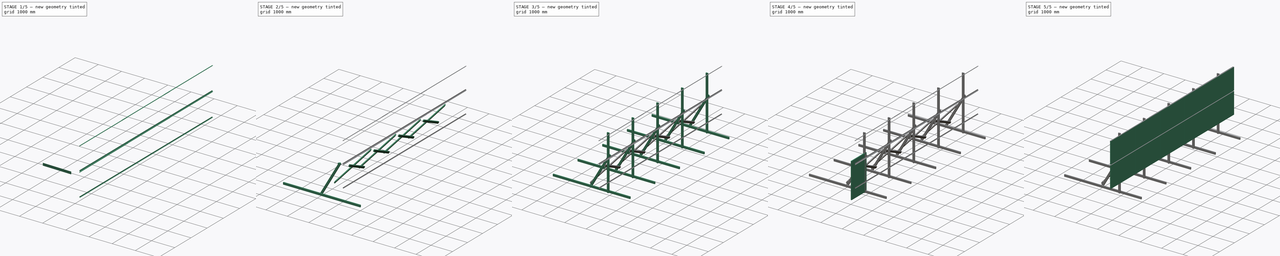
[diagram: build sequence overview — one tinted view per stage of 5, left to right]
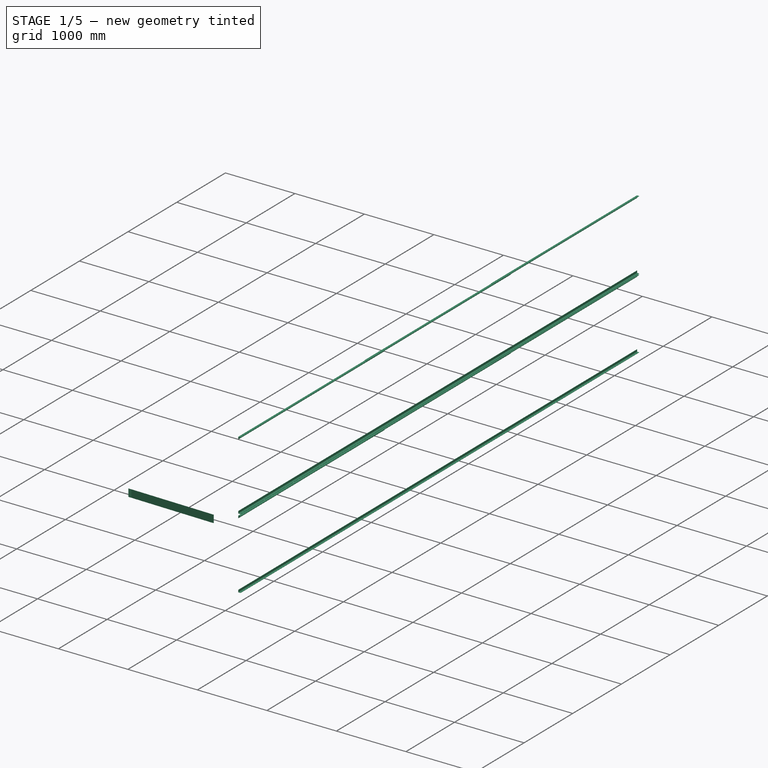
[diagram: stage 1 of 5 — iso view after this stage's code; geometry added in this stage tinted green]
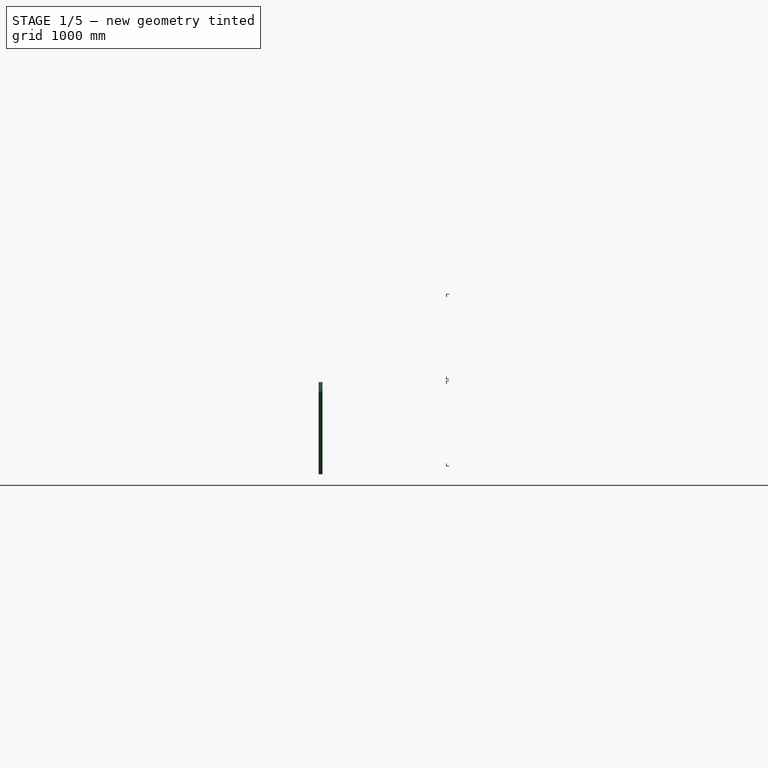
[diagram: stage 1 of 5 — front view after this stage's code; geometry added in this stage tinted green]
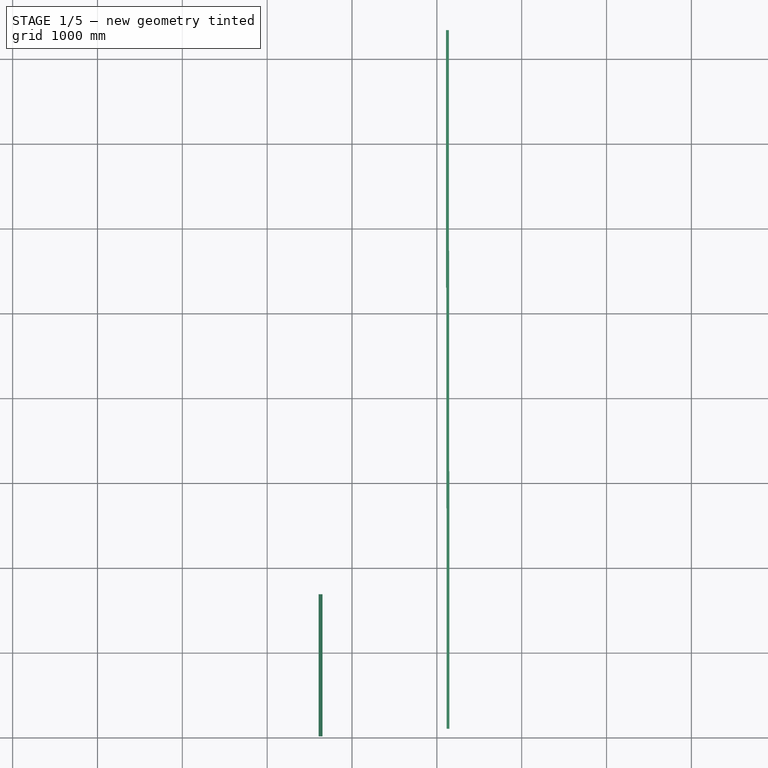
[diagram: stage 1 of 5 — top view after this stage's code; geometry added in this stage tinted green]
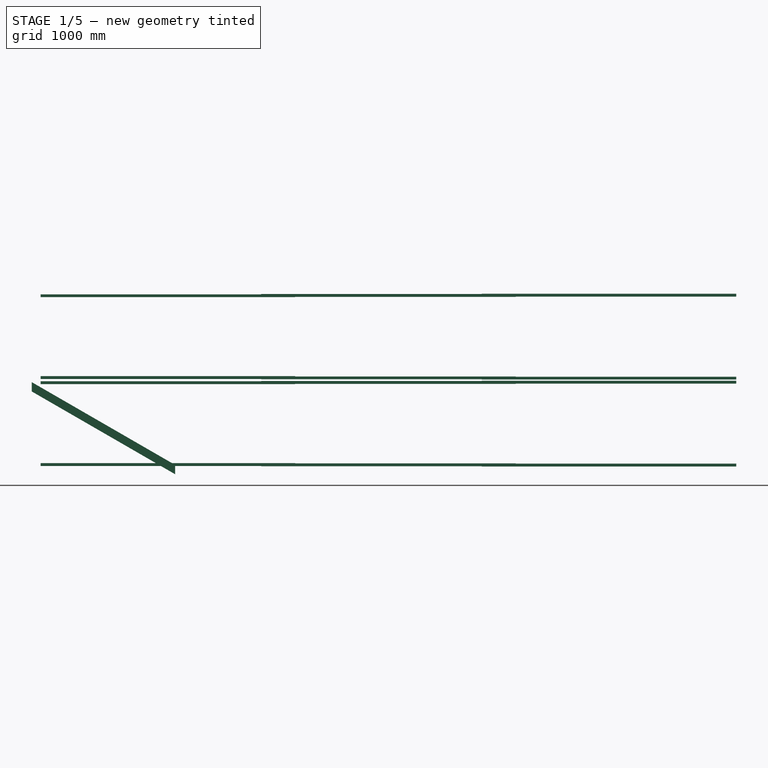
[diagram: stage 1 of 5 — right view after this stage's code; geometry added in this stage tinted green]
FCSTD DOCUMENT  (FreeCAD 0.16R)
Label: solar_mount7
License: All rights reserved
LicenseURL: http://en.wikipedia.org/wiki/All_rights_reserved
objects: Sketcher::SketchObject×10, PartDesign::Pad×9, Part::FeaturePython×7, Part::Cut×4, Part::Cylinder×4, Part::Fuse×2, Part::Compound×2, Spreadsheet::Sheet×1
note: 47 computed .brp shape members not serialized (recipe doc carries the construction recipe); baked Part::Feature solids carry a one-line shape summary decoded from their .brp

FEATURE [Sketcher::SketchObject] Sketch014
  Placement = pos=(-1488.52,4.22287e-05,258.48) rot=(0.57735,0.57735,0.57735;2.0944rad)
  expr: Constraints[20] = Spreadsheet.panel_delning + Spreadsheet.timmer_tjock
  expr: Constraints[18] = Spreadsheet.timmer_bredd
  sketch-geometry (8):
    g0: LineSegment StartX=0 StartY=0 StartZ=0 EndX=0 EndY=109.697 EndZ=0
    g1: LineSegment StartX=0 StartY=109.697 StartZ=0 EndX=1690 EndY=1085.42 EndZ=0
    g2: LineSegment StartX=1690 StartY=1085.42 StartZ=0 EndX=1690 EndY=975.722 EndZ=0
    g3: LineSegment StartX=1690 StartY=975.722 StartZ=0 EndX=0 EndY=0 EndZ=0
    g4: LineSegment [constr] StartX=1690 StartY=1085.42 StartZ=0 EndX=1737.5 EndY=1003.15 EndZ=0
    g5: LineSegment [constr] StartX=1737.5 StartY=1003.15 StartZ=0 EndX=1690 EndY=975.722 EndZ=0
    g6: LineSegment [constr] StartX=0 StartY=0 StartZ=0 EndX=-47.5 EndY=82.2724 EndZ=0
    g7: LineSegment [constr] StartX=-47.5 StartY=82.2724 StartZ=0 EndX=0 EndY=109.697 EndZ=0
  constraints (21):
    c: Coincident(g-1,g0)
    c: PointOnObject(g0,g-2)
    c: Coincident(g0,g1)
    c: Coincident(g1,g2)
    c: Vertical(g2)
    c: Coincident(g2,g3)
    c: Coincident(g3,g0)
    c: Parallel(g3,g1)
    c: Coincident(g1,g4)
    c: Coincident(g4,g5)
    c: Coincident(g5,g2)
    c: Coincident(g-1,g6)
    c: Coincident(g6,g7)
    c: Coincident(g7,g0)
    c: Parallel(g7,g1)
    c: Parallel(g5,g3)
    c: Perpendicular(g5,g4)
    c: Perpendicular(g7,g6)
    c: Distance(g-1,g6) = 95
    c: Angle(g-1,g3) = 0.523599
    c: DistanceX(g-1,g2) = 1690
FEATURE [PartDesign::Pad] Pad012
  Length = 45
  Length2 = 100
  Placement = pos=(-1488.52,4.22287e-05,258.48) rot=(0.57735,0.57735,0.57735;2.0944rad)
  Reversed = true
  Sketch = -> Sketch014
  Type = 0
  expr: Length = Spreadsheet.timmer_tjock
FEATURE [Part::FeaturePython] Clone  label="Clone of Pad012"  # Draft clone (typed FeaturePython)
  Objects = -> [Pad012]
  Placement = pos=(-1393.52,4.22287e-05,1468.16) rot=(0.57735,0.57735,-0.57735;4.18879rad)
  Scale = (1,1,1)
FEATURE [Sketcher::SketchObject] Sketch015
  Placement = pos=(117.5,105,483) rot=(1,0,0;1.5708rad)
  sketch-geometry (6):
    g0: LineSegment StartX=0 StartY=0 StartZ=0 EndX=30 EndY=0 EndZ=0
    g1: LineSegment StartX=30 StartY=0 StartZ=0 EndX=30 EndY=-3 EndZ=0
    g2: LineSegment StartX=30 StartY=-3 StartZ=0 EndX=-3 EndY=-3 EndZ=0
    g3: LineSegment StartX=-3 StartY=-3 StartZ=0 EndX=-3 EndY=30 EndZ=0
    g4: LineSegment StartX=-3 StartY=30 StartZ=0 EndX=0 EndY=30 EndZ=0
    g5: LineSegment StartX=0 StartY=30 StartZ=0 EndX=0 EndY=0 EndZ=0
  constraints (18):
    c: Coincident(g0,g-1)
    c: Horizontal(g0)
    c: Coincident(g0,g1)
    c: Vertical(g1)
    c: Coincident(g1,g2)
    c: Horizontal(g2)
    c: Coincident(g2,g3)
    c: Vertical(g3)
    c: Coincident(g3,g4)
    c: PointOnObject(g4,g-2)
    c: Horizontal(g4)
    c: Coincident(g4,g5)
    c: Coincident(g5,g-1)
    c: Equal(g4,g1)
    c: Equal(g2,g3)
    c: Equal(g5,g0)
    c: DistanceY(g1,g0) = 3
    c: DistanceY(g-1,g4) = 30
FEATURE [PartDesign::Pad] Pad013  label="30x30 L-profil"
  Length = 3000
  Length2 = 100
  Placement = pos=(117.5,105,483) rot=(1,0,0;1.5708rad)
  Reversed = true
  Sketch = -> Sketch015
  Type = 0
FEATURE [Part::FeaturePython] Clone001  label="Clone of 30x30 L-profil"  # Draft clone (typed FeaturePython)
  Objects = -> [Pad013]
  Placement = pos=(117.5,105,1475) rot=(0.57735,0.57735,-0.57735;2.0944rad)
  Scale = (1,1,1)
FEATURE [Part::FeaturePython] Array004  # Draft array (typed FeaturePython)
  Angle = 360
  ArrayType = 0
  Axis = (0,0,1)
  Base = -> Pad013
  Center = (0,0,0)
  Fuse = false
  IntervalAxis = (0,0,0)
  IntervalX = (1,0,0)
  IntervalY = (-3,2600,-3)
  IntervalZ = (0,0,1025)
  NumberPolar = 1
  NumberX = 1
  NumberY = 3
  NumberZ = 2
FEATURE [Part::FeaturePython] Array005  # Draft array (typed FeaturePython)
  Angle = 360
  ArrayType = 0
  Axis = (0,0,1)
  Base = -> Clone001
  Center = (0,0,0)
  Fuse = false
  IntervalAxis = (0,0,0)
  IntervalX = (1,0,0)
  IntervalY = (-3,2600,3)
  IntervalZ = (0,0,1025)
  NumberPolar = 1
  NumberX = 1
  NumberY = 3
  NumberZ = 2
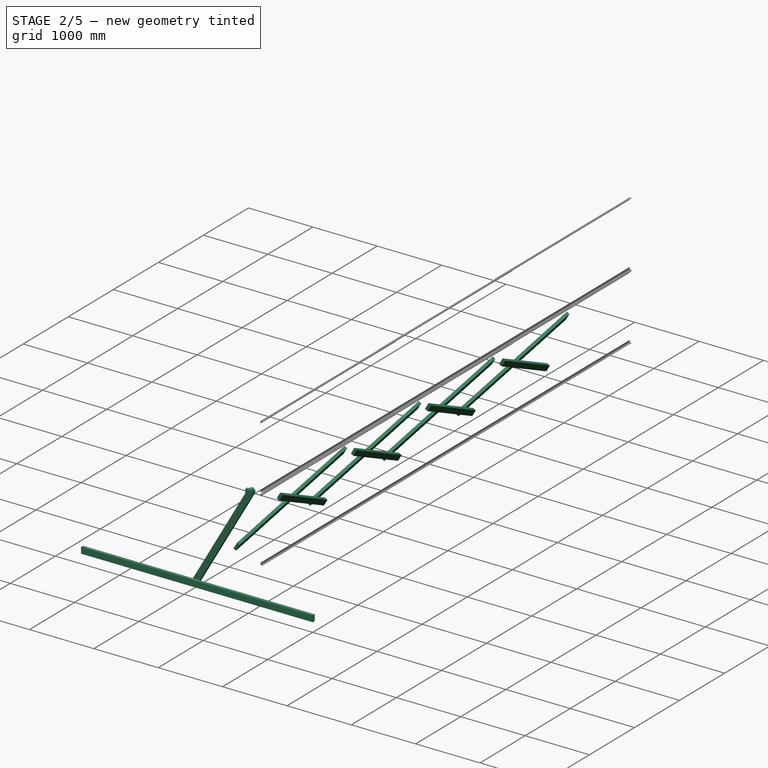
[diagram: stage 2 of 5 — iso view after this stage's code; geometry added in this stage tinted green]
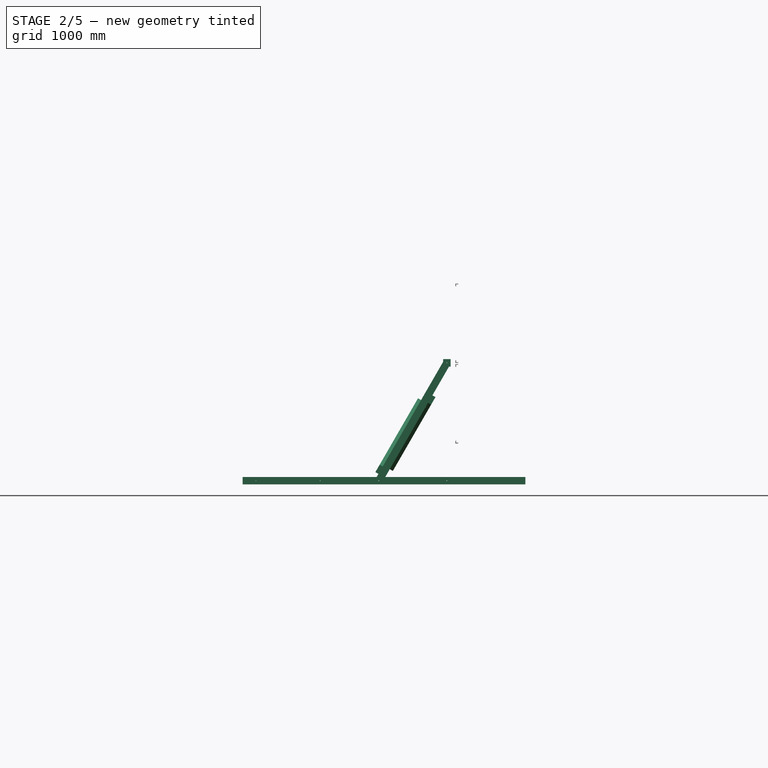
[diagram: stage 2 of 5 — front view after this stage's code; geometry added in this stage tinted green]
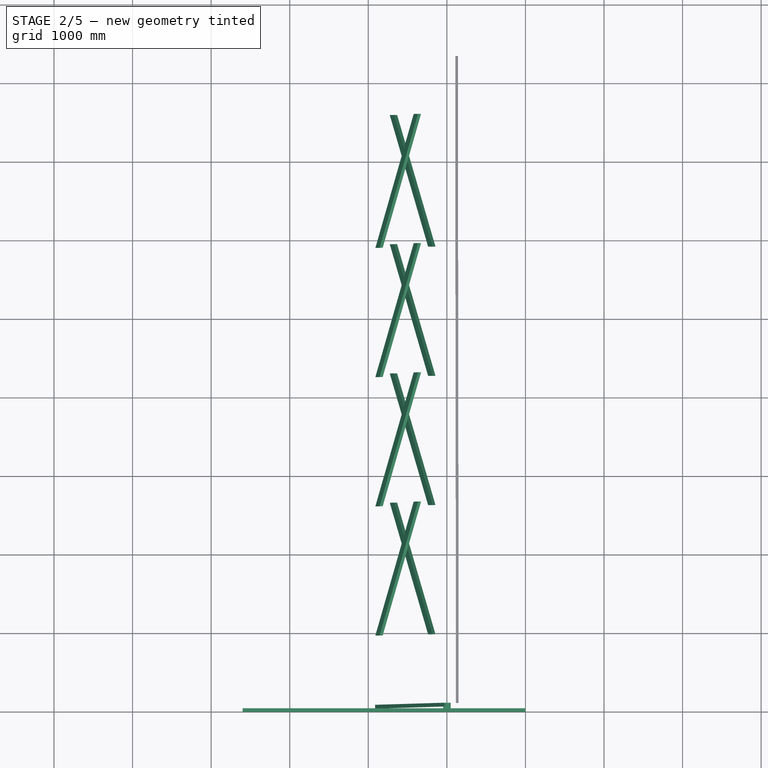
[diagram: stage 2 of 5 — top view after this stage's code; geometry added in this stage tinted green]
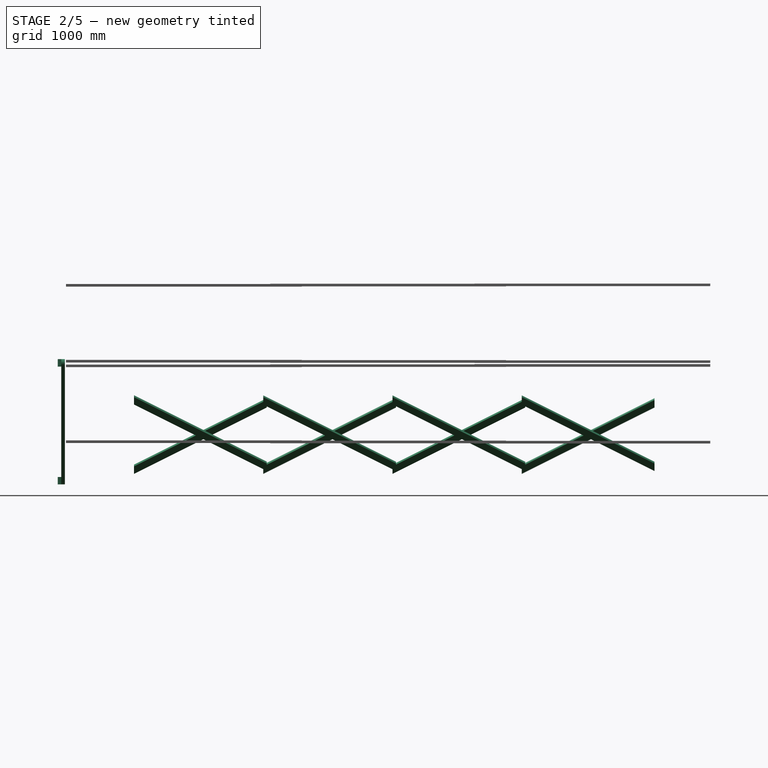
[diagram: stage 2 of 5 — right view after this stage's code; geometry added in this stage tinted green]
FEATURE [Sketcher::SketchObject] Sketch011
  Placement = pos=(0,0,0) rot=(1,0,0;1.5708rad)
  expr: Constraints[43] = Spreadsheet.timmer_bredd
  expr: Constraints[23] = Spreadsheet.vipp_center + 1000mm
  expr: Constraints[9] = Spreadsheet.vipp_center
  sketch-geometry (21):
    g0: LineSegment [constr] StartX=0 StartY=0 StartZ=0 EndX=-866.025 EndY=0 EndZ=0
    g1: GeomPoint [constr] X=0 Y=1500 Z=0
    g2: LineSegment [constr] StartX=0 StartY=0 StartZ=0 EndX=-1060.66 EndY=1060.66 EndZ=0
    g3: LineSegment [constr] StartX=-1060.66 StartY=1060.66 StartZ=0 EndX=-2429.97 EndY=0 EndZ=0
    g4: LineSegment [constr] StartX=0 StartY=0 StartZ=0 EndX=0 EndY=1500 EndZ=0
    g5: LineSegment [constr] StartX=0 StartY=1500 StartZ=0 EndX=0 EndY=2500 EndZ=0
    g6: LineSegment [constr] StartX=0 StartY=1500 StartZ=0 EndX=-866.025 EndY=0 EndZ=0
    g7: LineSegment [constr] StartX=-866.025 StartY=0 StartZ=0 EndX=-2429.97 EndY=0 EndZ=0
    g8: LineSegment [constr] StartX=0 StartY=0 StartZ=0 EndX=-574.025 EndY=1385.82 EndZ=0
    g9: LineSegment [constr] StartX=-574.025 StartY=1385.82 StartZ=0 EndX=-1613.02 EndY=0 EndZ=0
    g10: LineSegment [constr] StartX=-2429.97 StartY=0 StartZ=0 EndX=-2600 EndY=0 EndZ=0
    g11: LineSegment StartX=1000 StartY=0 StartZ=0 EndX=1000 EndY=47.5 EndZ=0
    g12: LineSegment StartX=1000 StartY=47.5 StartZ=0 EndX=-2600 EndY=47.5 EndZ=0
    g13: LineSegment StartX=-2600 StartY=47.5 StartZ=0 EndX=-2600 EndY=0 EndZ=0
    g14: LineSegment StartX=-2600 StartY=0 StartZ=0 EndX=-2600 EndY=-47.5 EndZ=0
    g15: LineSegment StartX=-2600 StartY=-47.5 StartZ=0 EndX=1000 EndY=-47.5 EndZ=0
    g16: LineSegment StartX=1000 StartY=-47.5 StartZ=0 EndX=1000 EndY=0 EndZ=0
    g17: Circle CenterX=0 CenterY=0 CenterZ=0 NormalX=0 NormalY=0 NormalZ=1 Radius=4
    g18: Circle CenterX=-866.025 CenterY=0 CenterZ=0 NormalX=0 NormalY=0 NormalZ=1 Radius=4
    g19: Circle CenterX=-1613.02 CenterY=0 CenterZ=0 NormalX=0 NormalY=0 NormalZ=1 Radius=4
    g20: Circle CenterX=-2429.97 CenterY=0 CenterZ=0 NormalX=0 NormalY=0 NormalZ=1 Radius=4
  constraints (54):
    c: Coincident(g-1,g0)
    c: Horizontal(g0)
    c: Coincident(g-1,g2)
    c: Coincident(g-1,g4)
    c: Coincident(g4,g1)
    c: Vertical(g4)
    c: Coincident(g4,g5)
    c: Vertical(g5)
    c: Equal(g4,g2)
    c: DistanceY(g4,g4) = 1500
    c: Angle(g4,g2) = 0.785398
    c: Coincident(g6,g1)
    c: Coincident(g6,g0)
    c: Coincident(g6,g7)
    c: Coincident(g7,g3)
    c: Horizontal(g7)
    c: Equal(g6,g3)
    c: Coincident(g-1,g8)
    c: Coincident(g8,g9)
    c: PointOnObject(g9,g7)
    c: Equal(g9,g6)
    c: Equal(g8,g4)
    c: Angle(g4,g8) = 0.392699
    c: DistanceY(g-1,g5) = 2500
    c: Coincident(g3,g10)
    c: Horizontal(g10)
    c: Angle(g6,g4) = 0.523599
    c: DistanceX(g10,g-1) = 2600
    c: Coincident(g2,g3)
    c: PointOnObject(g11,g-1)
    c: Vertical(g11)
    c: Coincident(g11,g12)
    c: Horizontal(g12)
    c: Coincident(g12,g13)
    c: Coincident(g13,g10)
    c: Coincident(g13,g14)
    c: Vertical(g14)
    c: Coincident(g14,g15)
    c: Horizontal(g15)
    c: Coincident(g15,g16)
    c: Coincident(g16,g11)
    c: Vertical(g16)
    c: Equal(g16,g11)
    c: DistanceY(g15,g11) = 95
    c: Vertical(g13)
    c: DistanceX(g-1,g15) = 1000
    c: Coincident(g17,g-1)
    c: Coincident(g18,g0)
    c: Coincident(g19,g9)
    c: Coincident(g20,g3)
    c: Equal(g20,g19)
    c: Equal(g19,g18)
    c: Equal(g18,g17)
    c: Radius(g17) = 4
FEATURE [PartDesign::Pad] Pad009  label="Bas001"
  Length = 45
  Length2 = 100
  Placement = pos=(0,0,0) rot=(1,0,0;1.5708rad)
  Reversed = true
  Sketch = -> Sketch011
  Type = 0
FEATURE [Sketcher::SketchObject] Sketch012
  Placement = pos=(0,0,0) rot=(1,0,0;1.5708rad)
  expr: Constraints[28] = Spreadsheet.timmer_bredd
  expr: Constraints[29] = Spreadsheet.timmer_bredd
  expr: Constraints[4] = Spreadsheet.vipp_center
  sketch-geometry (13):
    g0: LineSegment [constr] StartX=0 StartY=0 StartZ=0 EndX=-866.025 EndY=0 EndZ=0
    g1: GeomPoint [constr] X=0 Y=1500 Z=0
    g2: LineSegment [constr] StartX=0 StartY=0 StartZ=0 EndX=0 EndY=1500 EndZ=0
    g3: LineSegment [constr] StartX=0 StartY=1500 StartZ=0 EndX=-866.025 EndY=0 EndZ=0
    g4: Circle CenterX=0 CenterY=1500 CenterZ=0 NormalX=0 NormalY=0 NormalZ=1 Radius=4
    g5: LineSegment StartX=47.5 StartY=1547.5 StartZ=0 EndX=0 EndY=1547.5 EndZ=0
    g6: LineSegment StartX=0 StartY=1547.5 StartZ=0 EndX=-47.5 EndY=1547.5 EndZ=0
    g7: LineSegment StartX=-47.5 StartY=1547.5 StartZ=0 EndX=-47.5 EndY=1452.5 EndZ=0
    g8: LineSegment StartX=-47.5 StartY=1452.5 StartZ=0 EndX=47.5 EndY=1452.5 EndZ=0
    g9: LineSegment StartX=47.5 StartY=1452.5 StartZ=0 EndX=47.5 EndY=1500 EndZ=0
    g10: LineSegment StartX=47.5 StartY=1500 StartZ=0 EndX=47.5 EndY=1547.5 EndZ=0
    g11: LineSegment [constr] StartX=0 StartY=1500 StartZ=0 EndX=47.5 EndY=1500 EndZ=0
    g12: LineSegment [constr] StartX=0 StartY=1500 StartZ=0 EndX=0 EndY=1547.5 EndZ=0
  constraints (33):
    c: Coincident(g-1,g0)
    c: Horizontal(g0)
    c: Coincident(g-1,g2)
    c: Coincident(g2,g1)
    c: DistanceY(g2,g2) = 1500
    c: Coincident(g3,g1)
    c: Coincident(g3,g0)
    c: Angle(g3,g2) = 0.523599
    c: Vertical(g2)
    c: Coincident(g4,g1)
    c: Radius(g4) = 4
    c: Horizontal(g5)
    c: Coincident(g5,g6)
    c: Horizontal(g6)
    c: Coincident(g6,g7)
    c: Vertical(g7)
    c: Coincident(g7,g8)
    c: Horizontal(g8)
    c: Coincident(g8,g9)
    c: Vertical(g9)
    c: Coincident(g9,g10)
    c: Coincident(g10,g5)
    c: Vertical(g10)
    c: Equal(g5,g6)
    c: Equal(g10,g9)
    c: Coincident(g11,g1)
    c: Coincident(g11,g9)
    c: Horizontal(g11)
    c: DistanceY(g8,g5) = 95
    c: DistanceX(g6,g5) = 95
    c: Coincident(g12,g1)
    c: Coincident(g12,g5)
    c: Vertical(g12)
FEATURE [PartDesign::Pad] Pad010  label="Bricka"
  Length = 45
  Length2 = 100
  Placement = pos=(0,0,0) rot=(1,0,0;1.5708rad)
  Reversed = true
  Sketch = -> Sketch012
  Type = 0
FEATURE [Sketcher::SketchObject] Sketch013
  Placement = pos=(0,90,0) rot=(1,0,0;1.5708rad)
  expr: Constraints[9] = Spreadsheet.vipp_center + 1000mm
  expr: Constraints[6] = Spreadsheet.vipp_center
  expr: Constraints[20] = Spreadsheet.timmer_bredd
  sketch-geometry (15):
    g0: LineSegment [constr] StartX=0 StartY=0 StartZ=0 EndX=-866.025 EndY=0 EndZ=0
    g1: GeomPoint [constr] X=0 Y=1500 Z=0
    g2: LineSegment [constr] StartX=0 StartY=0 StartZ=0 EndX=0 EndY=1500 EndZ=0
    g3: LineSegment [constr] StartX=0 StartY=1500 StartZ=0 EndX=0 EndY=2500 EndZ=0
    g4: LineSegment [constr] StartX=0 StartY=1500 StartZ=0 EndX=-866.025 EndY=0 EndZ=0
    g5: ArcOfCircle CenterX=0 CenterY=1500 CenterZ=0 NormalX=0 NormalY=0 NormalZ=1 Radius=47.5 StartAngle=5.75959 EndAngle=8.90118
    g6: ArcOfCircle CenterX=-866.025 CenterY=0 CenterZ=0 NormalX=0 NormalY=0 NormalZ=1 Radius=47.5 StartAngle=2.61799 EndAngle=5.75959
    g7: LineSegment StartX=-824.889 StartY=-23.75 StartZ=0 EndX=41.1362 EndY=1476.25 EndZ=0
    g8: LineSegment StartX=-41.1362 StartY=1523.75 StartZ=0 EndX=-907.162 EndY=23.75 EndZ=0
    g9: LineSegment [constr] StartX=-907.162 StartY=23.75 StartZ=0 EndX=-866.025 EndY=0 EndZ=0
    g10: LineSegment [constr] StartX=-866.025 StartY=0 StartZ=0 EndX=-824.889 EndY=-23.75 EndZ=0
    g11: LineSegment [constr] StartX=0 StartY=1500 StartZ=0 EndX=-41.1362 EndY=1523.75 EndZ=0
    g12: LineSegment [constr] StartX=0 StartY=1500 StartZ=0 EndX=41.1362 EndY=1476.25 EndZ=0
    g13: Circle CenterX=0 CenterY=1500 CenterZ=0 NormalX=0 NormalY=0 NormalZ=1 Radius=4
    g14: Circle CenterX=-866.025 CenterY=0 CenterZ=0 NormalX=0 NormalY=0 NormalZ=1 Radius=4
  constraints (37):
    c: Coincident(g-1,g0)
    c: Horizontal(g0)
    c: Coincident(g-1,g2)
    c: Coincident(g2,g1)
    c: Coincident(g2,g3)
    c: Vertical(g3)
    c: DistanceY(g2,g2) = 1500
    c: Coincident(g4,g1)
    c: Coincident(g4,g0)
    c: DistanceY(g-1,g3) = 2500
    c: Angle(g4,g2) = 0.523599
    c: Coincident(g5,g1)
    c: Coincident(g6,g0)
    c: Coincident(g7,g6)
    c: Coincident(g7,g5)
    c: Coincident(g8,g5)
    c: Coincident(g8,g6)
    c: Coincident(g6,g9)
    c: Coincident(g9,g10)
    c: Coincident(g10,g6)
    c: Distance(g5,g5) = 95
    c: Vertical(g2)
    c: Coincident(g11,g1)
    c: Coincident(g11,g5)
    c: Coincident(g12,g1)
    c: Coincident(g12,g5)
    c: Equal(g11,g12)
    c: Perpendicular(g12,g7)
    c: Perpendicular(g8,g11)
    c: Perpendicular(g10,g7)
    c: Perpendicular(g8,g9)
    c: Coincident(g9,g0)
    c: Equal(g10,g12)
    c: Coincident(g13,g1)
    c: Coincident(g14,g0)
    c: Equal(g14,g13)
    c: Radius(g13) = 4
FEATURE [PartDesign::Pad] Pad011  label="Justeringsarm"
  Length = 45
  Length2 = 100
  Placement = pos=(0,90,0) rot=(1,0,0;1.5708rad)
  Sketch = -> Sketch013
  Type = 0
  expr: Length = Spreadsheet.timmer_tjock
FEATURE [Part::Compound] Compound001  label="Kryss"
  Links = -> [Clone,Pad012]
FEATURE [Part::FeaturePython] Array002  label="KryssArray"  # Draft array (typed FeaturePython)
  Angle = 360
  ArrayType = 0
  Axis = (0,0,1)
  Base = -> Compound001
  Center = (0,0,0)
  Fuse = false
  IntervalAxis = (0,0,0)
  IntervalX = (1,0,0)
  IntervalY = (0,1645,0)
  IntervalZ = (0,0,0)
  NumberPolar = 1
  NumberX = 1
  NumberY = 4
  NumberZ = 1
  Placement = pos=(288.957,970,-881.557) rot=(0,1,0;0.523599rad)
  expr: IntervalY.y = Spreadsheet.panel_delning
  expr: NumberY = Spreadsheet.antal_paneler / 2 - 1
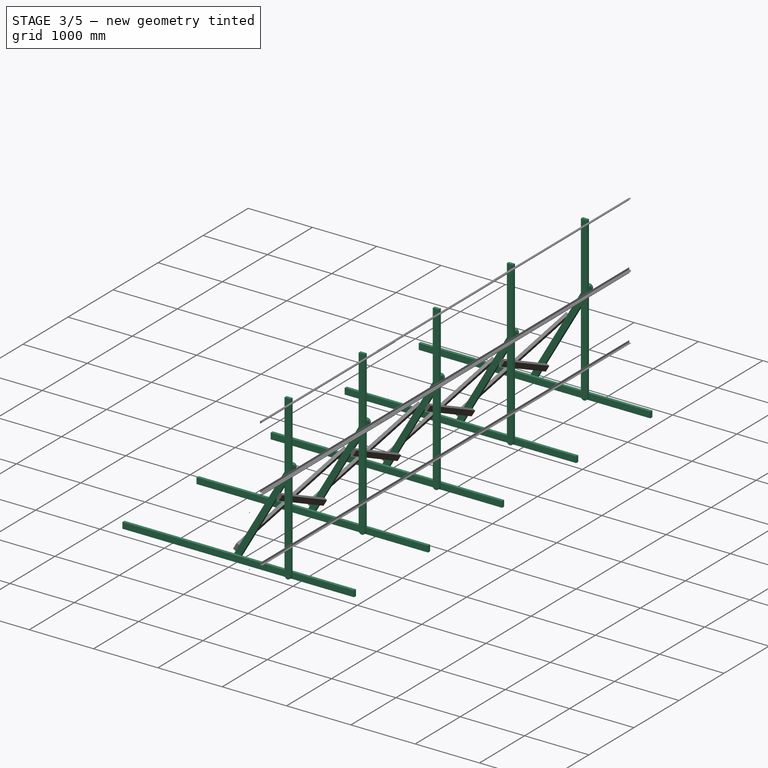
[diagram: stage 3 of 5 — iso view after this stage's code; geometry added in this stage tinted green]
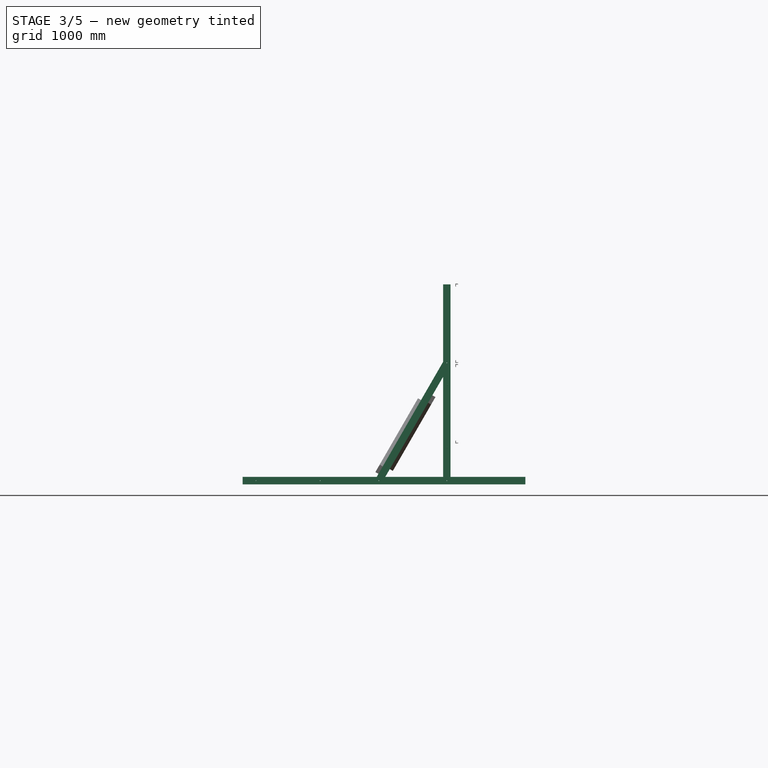
[diagram: stage 3 of 5 — front view after this stage's code; geometry added in this stage tinted green]
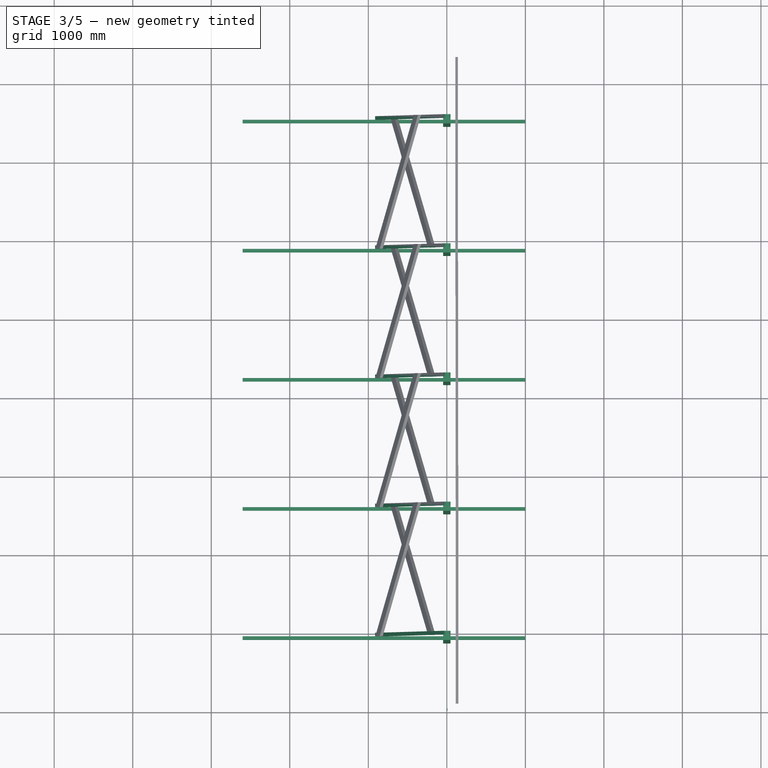
[diagram: stage 3 of 5 — top view after this stage's code; geometry added in this stage tinted green]
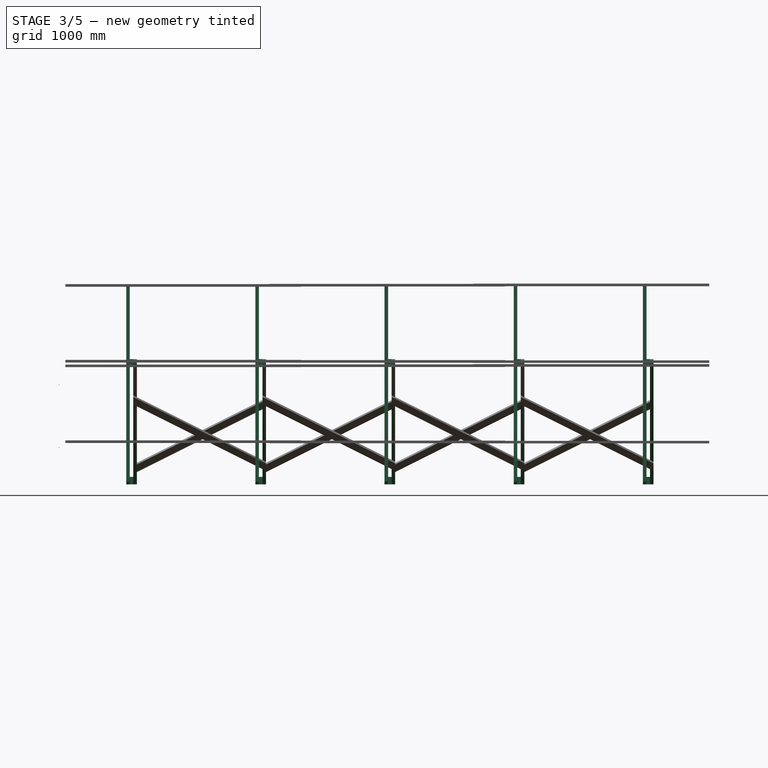
[diagram: stage 3 of 5 — right view after this stage's code; geometry added in this stage tinted green]
FEATURE [Part::Cylinder] Cylinder
  Angle = 360
  Height = 10
  Placement = pos=(0,25,420) rot=(0,1,0;1.5708rad)
  Radius = 4.5
FEATURE [Part::Cylinder] Cylinder001
  Angle = 360
  Height = 10
  Placement = pos=(0,25,1220) rot=(0,1,0;1.5708rad)
  Radius = 4.5
FEATURE [Part::Fuse] Fusion
  Base = -> Cylinder
  Tool = -> Cylinder001
FEATURE [Sketcher::SketchObject] Sketch009
  Placement = pos=(0,0,0) rot=(1,0,0;1.5708rad)
  sketch-geometry (20):
    g0: LineSegment StartX=0 StartY=0 StartZ=0 EndX=-1154.7 EndY=0 EndZ=0
    g1: GeomPoint [constr] X=0 Y=2000 Z=0
    g2: LineSegment StartX=0 StartY=0 StartZ=0 EndX=-1414.21 EndY=1414.21 EndZ=0
    g3: LineSegment [constr] StartX=-1414.21 StartY=1414.21 StartZ=0 EndX=-3239.96 EndY=0 EndZ=0
    g4: LineSegment StartX=0 StartY=0 StartZ=0 EndX=0 EndY=2000 EndZ=0
    g5: LineSegment StartX=0 StartY=2000 StartZ=0 EndX=0 EndY=3000 EndZ=0
    g6: LineSegment StartX=0 StartY=2000 StartZ=0 EndX=-1154.7 EndY=0 EndZ=0
    g7: LineSegment StartX=-1154.7 StartY=0 StartZ=0 EndX=-3239.96 EndY=0 EndZ=0
    g8: LineSegment StartX=0 StartY=0 StartZ=0 EndX=-765.367 EndY=1847.76 EndZ=0
    g9: LineSegment StartX=-765.367 StartY=1847.76 StartZ=0 EndX=-2150.69 EndY=0 EndZ=0
    g10: LineSegment StartX=-3239.96 StartY=0 StartZ=0 EndX=-4000 EndY=0 EndZ=0
    g11: LineSegment StartX=-1414.21 StartY=1414.21 StartZ=0 EndX=-1694.63 EndY=1197 EndZ=0
    g12: LineSegment StartX=-1694.63 StartY=1197 StartZ=0 EndX=-2959.54 EndY=217.209 EndZ=0
    g13: LineSegment StartX=-2959.54 StartY=217.209 StartZ=0 EndX=-3239.96 EndY=0 EndZ=0
    g14: LineSegment StartX=-3239.96 StartY=0 StartZ=0 EndX=-4219.75 EndY=1264.91 EndZ=0
    g15: LineSegment StartX=-4219.75 StartY=1264.91 StartZ=0 EndX=-3939.34 EndY=1482.12 EndZ=0
    g16: LineSegment StartX=-3939.34 StartY=1482.12 StartZ=0 EndX=-2674.42 EndY=2461.92 EndZ=0
    g17: LineSegment StartX=-2674.42 StartY=2461.92 StartZ=0 EndX=-2394.01 EndY=2679.12 EndZ=0
    g18: LineSegment StartX=-2394.01 StartY=2679.12 StartZ=0 EndX=-1414.21 EndY=1414.21 EndZ=0
    g19: LineSegment StartX=-3939.34 StartY=1482.12 StartZ=0 EndX=-1694.63 EndY=1197 EndZ=0
  constraints (52):
    c: Coincident(g-1,g0)
    c: Horizontal(g0)
    c: Coincident(g-1,g2)
    c: Coincident(g2,g3)
    c: Coincident(g-1,g4)
    c: Coincident(g4,g1)
    c: Vertical(g4)
    c: Coincident(g4,g5)
    c: Vertical(g5)
    c: Equal(g4,g2)
    c: DistanceY(g4,g4) = 2000
    c: Angle(g4,g2) = 0.785398
    c: Coincident(g6,g1)
    c: Coincident(g6,g0)
    c: Coincident(g6,g7)
    c: Coincident(g7,g3)
    c: Horizontal(g7)
    c: Equal(g6,g3)
    c: Coincident(g-1,g8)
    c: Coincident(g8,g9)
    c: PointOnObject(g9,g7)
    c: Equal(g9,g6)
    c: Equal(g8,g4)
    c: Angle(g4,g8) = 0.392699
    c: DistanceY(g-1,g5) = 3000
    c: Coincident(g3,g10)
    c: Horizontal(g10)
    c: Angle(g6,g4) = 0.523599
    c: DistanceX(g10,g-1) = 4000
    c: Coincident(g2,g11)
    c: Coincident(g11,g12)
    c: Coincident(g12,g13)
    c: Coincident(g13,g3)
    c: Coincident(g13,g14)
    c: Coincident(g14,g15)
    c: Coincident(g15,g16)
    c: Coincident(g16,g17)
    c: Coincident(g17,g18)
    c: Coincident(g18,g11)
    c: Perpendicular(g14,g3)
    c: Distance(g17,g2) = 1600
    c: Equal(g15,g13)
    c: Equal(g13,g11)
    c: Equal(g11,g17)
    c: Parallel(g15,g16)
    c: Parallel(g16,g17)
    c: Equal(g14,g18)
    c: Perpendicular(g3,g18)
    c: Tangent(g12,g3) = -1.5708
    c: Coincident(g15,g19)
    c: Coincident(g19,g11)
    c: Angle(g19,g3) = 0.785398
FEATURE [Sketcher::SketchObject] Sketch010
  Placement = pos=(0,0,0) rot=(1,0,0;1.5708rad)
  expr: Constraints[24] = Spreadsheet.timmer_bredd
  expr: Constraints[9] = Spreadsheet.vipp_center + 1000mm
  expr: Constraints[6] = Spreadsheet.vipp_center
  sketch-geometry (14):
    g0: LineSegment [constr] StartX=0 StartY=0 StartZ=0 EndX=-866.025 EndY=0 EndZ=0
    g1: GeomPoint [constr] X=0 Y=1500 Z=0
    g2: LineSegment [constr] StartX=0 StartY=0 StartZ=0 EndX=0 EndY=1500 EndZ=0
    g3: LineSegment [constr] StartX=0 StartY=1500 StartZ=0 EndX=0 EndY=2500 EndZ=0
    g4: LineSegment [constr] StartX=0 StartY=1500 StartZ=0 EndX=-866.025 EndY=0 EndZ=0
    g5: LineSegment [constr] StartX=0 StartY=0 StartZ=0 EndX=47.5 EndY=0 EndZ=0
    g6: LineSegment StartX=47.5 StartY=0 StartZ=0 EndX=47.5 EndY=2500 EndZ=0
    g7: LineSegment StartX=47.5 StartY=2500 StartZ=0 EndX=0 EndY=2500 EndZ=0
    g8: LineSegment StartX=0 StartY=2500 StartZ=0 EndX=-47.5 EndY=2500 EndZ=0
    g9: LineSegment StartX=-47.5 StartY=2500 StartZ=0 EndX=-47.5 EndY=0 EndZ=0
    g10: LineSegment [constr] StartX=-47.5 StartY=0 StartZ=0 EndX=0 EndY=0 EndZ=0
    g11: Circle CenterX=0 CenterY=1500 CenterZ=0 NormalX=0 NormalY=0 NormalZ=1 Radius=4
    g12: Circle CenterX=0 CenterY=0 CenterZ=0 NormalX=0 NormalY=0 NormalZ=1 Radius=4
    g13: ArcOfCircle CenterX=0 CenterY=0 CenterZ=0 NormalX=0 NormalY=0 NormalZ=1 Radius=47.5 StartAngle=3.14159 EndAngle=6.28319
  constraints (35):
    c: Coincident(g-1,g0)
    c: Horizontal(g0)
    c: Coincident(g-1,g2)
    c: Coincident(g2,g1)
    c: Coincident(g2,g3)
    c: Vertical(g3)
    c: DistanceY(g2,g2) = 1500
    c: Coincident(g4,g1)
    c: Coincident(g4,g0)
    c: DistanceY(g-1,g3) = 2500
    c: Angle(g4,g2) = 0.523599
    c: Vertical(g2)
    c: Horizontal(g5)
    c: Coincident(g5,g6)
    c: Vertical(g6)
    c: Coincident(g6,g7)
    c: Coincident(g7,g3)
    c: Coincident(g7,g8)
    c: Horizontal(g8)
    c: Coincident(g8,g9)
    c: Vertical(g9)
    c: Coincident(g9,g10)
    c: Coincident(g10,g5)
    c: Horizontal(g10)
    c: DistanceX(g9,g5) = 95
    c: Equal(g10,g5)
    c: Horizontal(g7)
    c: Coincident(g11,g1)
    c: Coincident(g12,g-1)
    c: Equal(g12,g11)
    c: Radius(g12) = 4
    c: Coincident(g5,g-1)
    c: Coincident(g13,g-1)
    c: Coincident(g13,g5)
    c: Coincident(g13,g9)
FEATURE [PartDesign::Pad] Pad008  label="Vipparm"
  Length = 45
  Length2 = 100
  Placement = pos=(0,0,0) rot=(1,0,0;1.5708rad)
  Sketch = -> Sketch010
  Type = 0
FEATURE [Spreadsheet::Sheet] Spreadsheet
  cells = A1=Timmer tjocklek; B1(timmer_tjock)==45mm; A2=Timmer bredd; B2(timmer_bredd)==95mm; A3=Panel bredd; B3(panel_bredd)==992mm; A4=Panel höjd; B4(panel_h)==1640mm; A5=Panel delning; B5(panel_delning)==B4 + B2 - 2 * B1; A6=Vipparm mitt; B6(vipp_center)==1500mm; C6=Vars justeringsarmen ansluter till vipparmen; A7=Antal paneler; B7(antal_paneler)=10; C7=Måste vara 2, 6, 10, 14 osv
FEATURE [Part::Compound] Compound
  Links = -> [Pad011,Pad008,Pad010,Pad009]
FEATURE [Part::FeaturePython] Array001  label="Ställning"  # Draft array (typed FeaturePython)
  Angle = 360
  ArrayType = 0
  Axis = (0,0,1)
  Base = -> Compound
  Center = (0,0,0)
  Fuse = false
  IntervalAxis = (0,0,0)
  IntervalX = (1,0,0)
  IntervalY = (0,1645,0)
  IntervalZ = (0,0,0)
  NumberPolar = 1
  NumberX = 1
  NumberY = 5
  NumberZ = 1
  Placement = pos=(-1.508e-09,925,1e-12) rot=(0,0,1;0rad)
  expr: NumberY = Spreadsheet.antal_paneler / 2
  expr: IntervalY.y = Spreadsheet.panel_delning
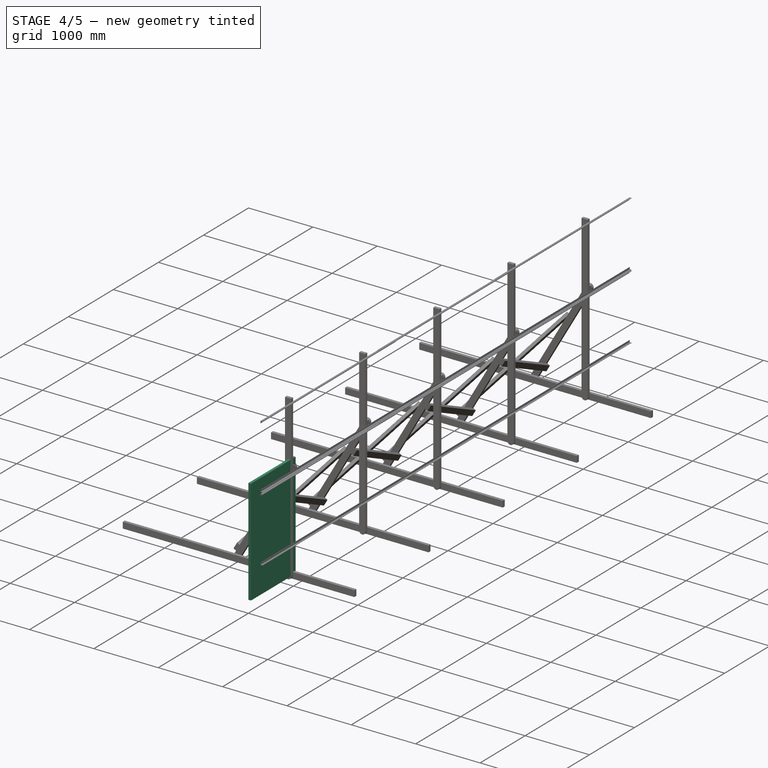
[diagram: stage 4 of 5 — iso view after this stage's code; geometry added in this stage tinted green]
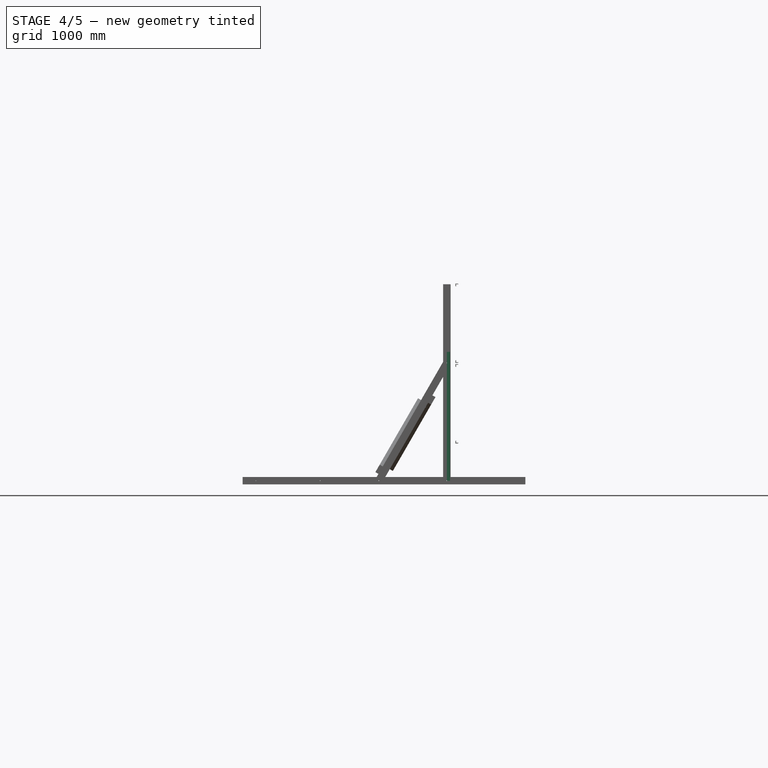
[diagram: stage 4 of 5 — front view after this stage's code; geometry added in this stage tinted green]
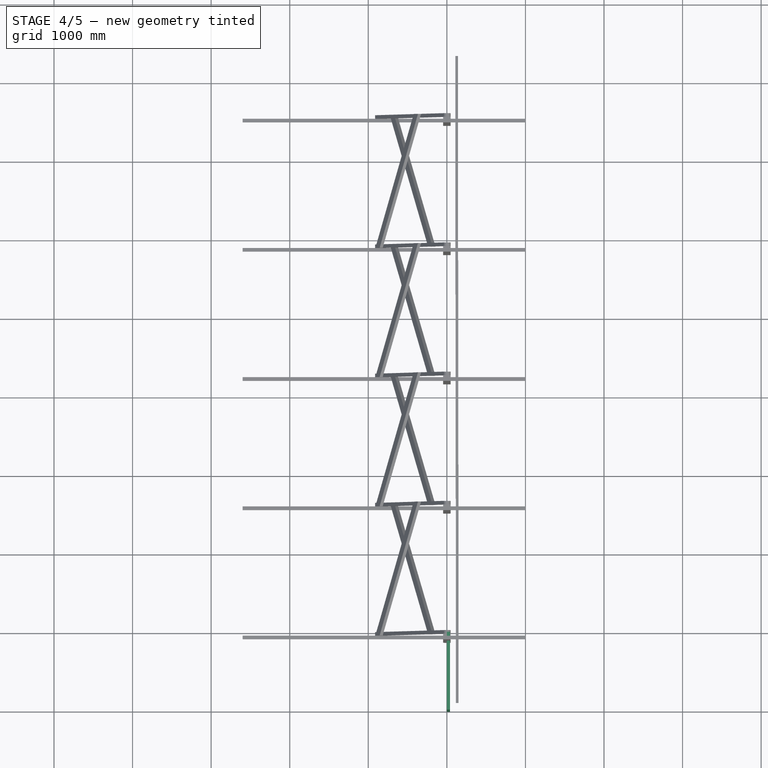
[diagram: stage 4 of 5 — top view after this stage's code; geometry added in this stage tinted green]
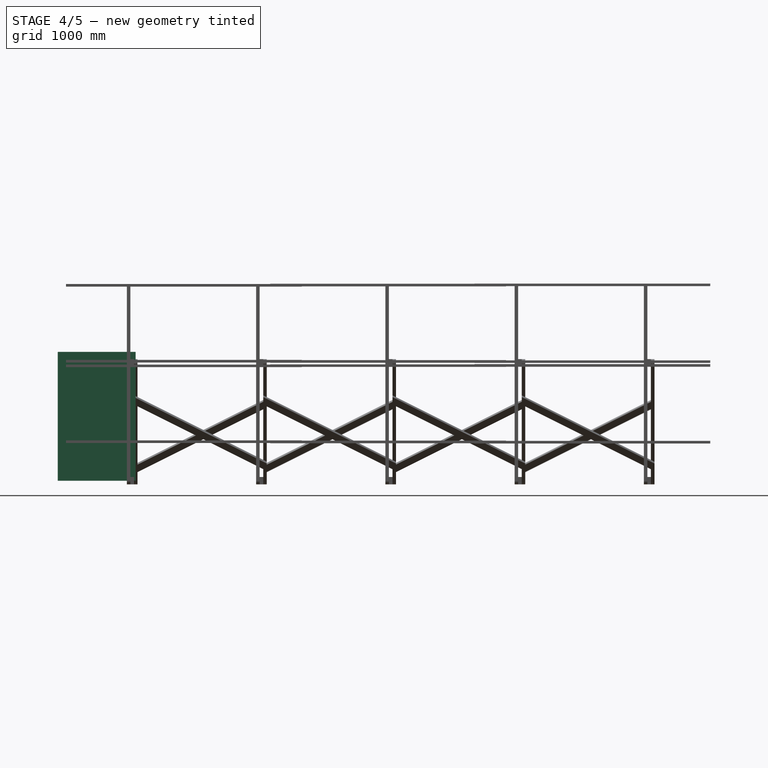
[diagram: stage 4 of 5 — right view after this stage's code; geometry added in this stage tinted green]
FEATURE [Sketcher::SketchObject] Sketch
  Placement = pos=(0,0,0) rot=(0.57735,0.57735,0.57735;2.0944rad)
  sketch-geometry (4):
    g0: LineSegment StartX=0 StartY=0 StartZ=0 EndX=992 EndY=0 EndZ=0
    g1: LineSegment StartX=992 StartY=0 StartZ=0 EndX=992 EndY=1640 EndZ=0
    g2: LineSegment StartX=992 StartY=1640 StartZ=0 EndX=0 EndY=1640 EndZ=0
    g3: LineSegment StartX=0 StartY=1640 StartZ=0 EndX=0 EndY=0 EndZ=0
  constraints (11):
    c: Coincident(g0,g1)
    c: Coincident(g1,g2)
    c: Coincident(g2,g3)
    c: Coincident(g3,g0)
    c: Horizontal(g0)
    c: Horizontal(g2)
    c: Vertical(g1)
    c: Vertical(g3)
    c: Coincident(g0,g-1)
    c: DistanceX(g0,g0) = 992
    c: DistanceY(g3,g3) = 1640
FEATURE [PartDesign::Pad] Pad  label="Bas"
  Length = 40
  Length2 = 100
  Placement = pos=(0,0,0) rot=(0.57735,0.57735,0.57735;2.0944rad)
  Sketch = -> Sketch
  Type = 0
FEATURE [Sketcher::SketchObject] Sketch001
  Placement = pos=(0,0,0) rot=(0.57735,0.57735,0.57735;2.0944rad)
  sketch-geometry (4):
    g0: LineSegment StartX=35 StartY=35 StartZ=0 EndX=957 EndY=35 EndZ=0
    g1: LineSegment StartX=957 StartY=35 StartZ=0 EndX=957 EndY=1605 EndZ=0
    g2: LineSegment StartX=957 StartY=1605 StartZ=0 EndX=35 EndY=1605 EndZ=0
    g3: LineSegment StartX=35 StartY=1605 StartZ=0 EndX=35 EndY=35 EndZ=0
  constraints (12):
    c: Coincident(g0,g1)
    c: Coincident(g1,g2)
    c: Coincident(g2,g3)
    c: Coincident(g3,g0)
    c: Horizontal(g0)
    c: Horizontal(g2)
    c: Vertical(g1)
    c: Vertical(g3)
    c: DistanceX(g-2,g0) = 35
    c: DistanceY(g-1,g0) = 35
    c: DistanceX(g0,g0) = 922
    c: DistanceY(g1,g1) = 1570
FEATURE [PartDesign::Pad] Pad001  label="Gröpner"
  Length = 20
  Length2 = 100
  Placement = pos=(0,0,0) rot=(0.57735,0.57735,0.57735;2.0944rad)
  Sketch = -> Sketch001
  Type = 0
FEATURE [Sketcher::SketchObject] Sketch002
  Placement = pos=(3,0,0) rot=(0.57735,0.57735,0.57735;2.0944rad)
  sketch-geometry (4):
    g0: LineSegment StartX=11 StartY=11 StartZ=0 EndX=981 EndY=11 EndZ=0
    g1: LineSegment StartX=981 StartY=11 StartZ=0 EndX=981 EndY=1629 EndZ=0
    g2: LineSegment StartX=981 StartY=1629 StartZ=0 EndX=11 EndY=1629 EndZ=0
    g3: LineSegment StartX=11 StartY=1629 StartZ=0 EndX=11 EndY=11 EndZ=0
  constraints (12):
    c: Coincident(g0,g1)
    c: Coincident(g1,g2)
    c: Coincident(g2,g3)
    c: Coincident(g3,g0)
    c: Horizontal(g0)
    c: Horizontal(g2)
    c: Vertical(g1)
    c: Vertical(g3)
    c: DistanceX(g-2,g0) = 11
    c: DistanceY(g-1,g0) = 11
    c: DistanceX(g0,g0) = 970
    c: DistanceY(g1,g1) = 1618
FEATURE [PartDesign::Pad] Pad002  label="Gröpkant"
  Length = 27
  Length2 = 100
  Placement = pos=(3,0,0) rot=(0.57735,0.57735,0.57735;2.0944rad)
  Sketch = -> Sketch002
  Type = 0
FEATURE [Part::Cut] Cut
  Base = -> Pad
  Tool = -> Pad001
FEATURE [Part::Cut] Cut001
  Base = -> Cut
  Tool = -> Pad002
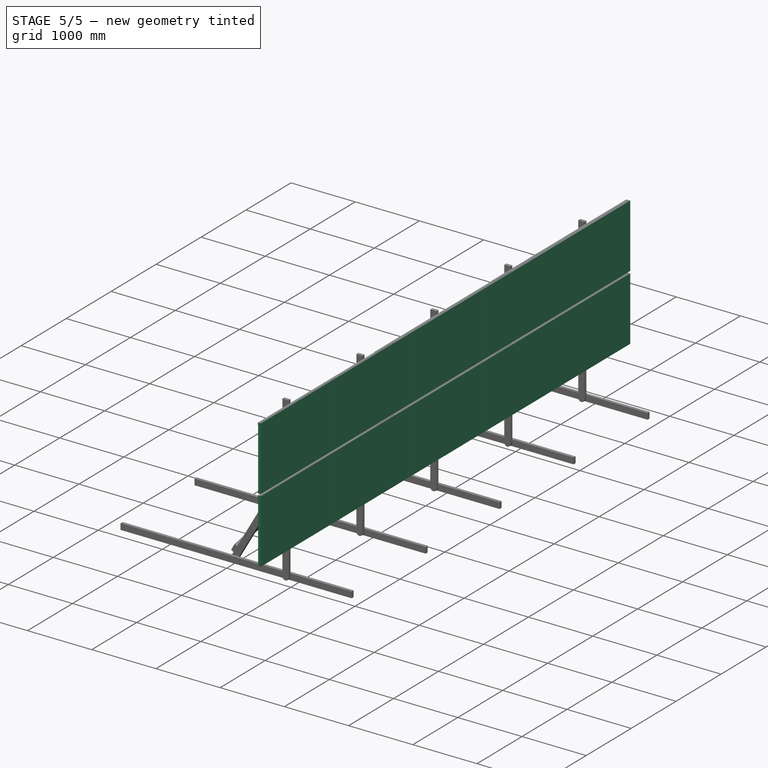
[diagram: stage 5 of 5 — iso view after this stage's code; geometry added in this stage tinted green]
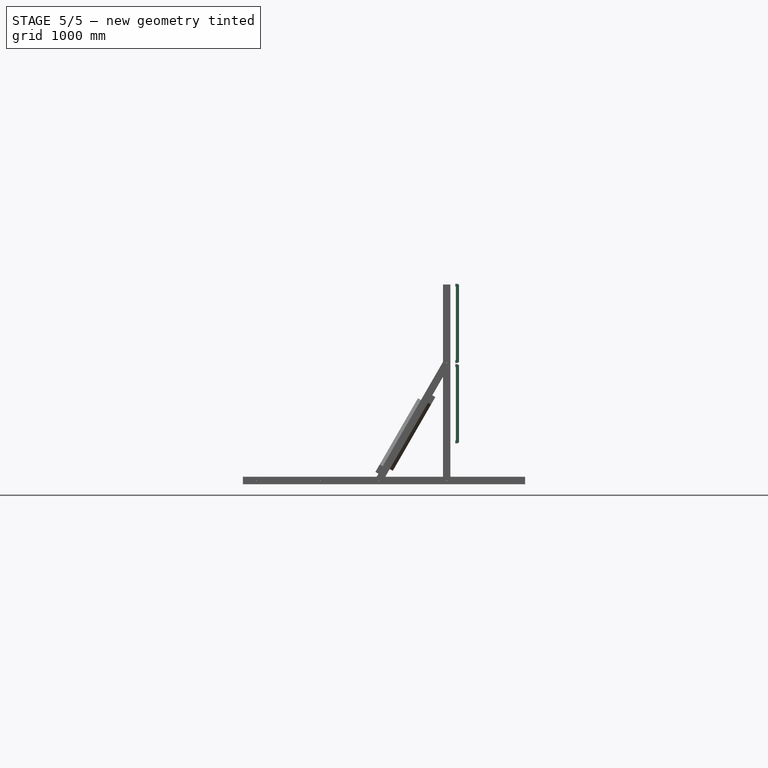
[diagram: stage 5 of 5 — front view after this stage's code; geometry added in this stage tinted green]
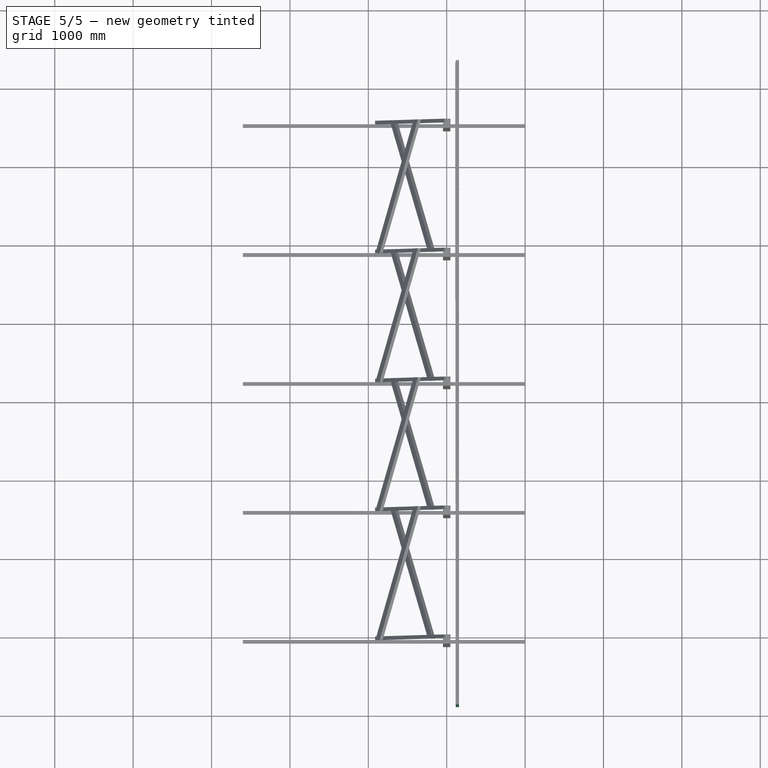
[diagram: stage 5 of 5 — top view after this stage's code; geometry added in this stage tinted green]
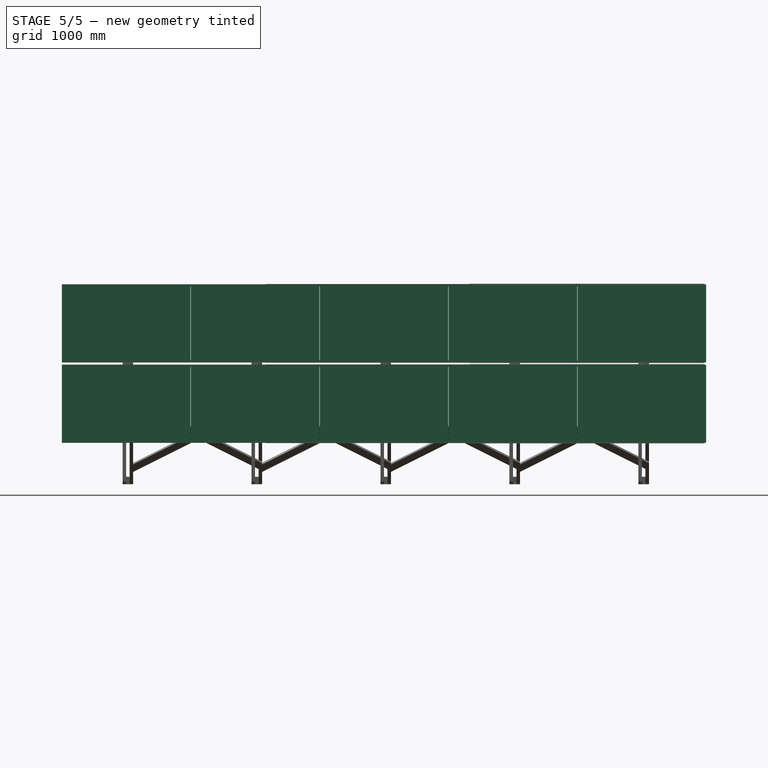
[diagram: stage 5 of 5 — right view after this stage's code; geometry added in this stage tinted green]
FEATURE [Part::Cylinder] Cylinder002
  Angle = 360
  Height = 10
  Placement = pos=(0,25,420) rot=(0,1,0;1.5708rad)
  Radius = 4.5
FEATURE [Part::Cylinder] Cylinder003
  Angle = 360
  Height = 10
  Placement = pos=(0,25,1220) rot=(0,1,0;1.5708rad)
  Radius = 4.5
FEATURE [Part::Fuse] Fusion001
  Base = -> Cylinder002
  Placement = pos=(0,942,0) rot=(0,0,1;0rad)
  Tool = -> Cylinder003
FEATURE [Part::Cut] Cut002
  Base = -> Cut001
  Tool = -> Fusion
FEATURE [Part::Cut] Cut003  label="Solar panel w holes"
  Base = -> Cut002
  Placement = pos=(-1.507e-09,-1305.59,0) rot=(1,0,0;1.5708rad)
  Tool = -> Fusion001
FEATURE [Part::FeaturePython] Array  label="Paneler"  # Draft array (typed FeaturePython)
  Angle = 270
  ArrayType = 0
  Axis = (0,0,1)
  Base = -> Cut003
  Center = (0,0,0)
  Fuse = false
  IntervalAxis = (0,0,0)
  IntervalX = (1,0,0)
  IntervalY = (0,1645,0)
  IntervalZ = (0,0,1025)
  NumberPolar = 1
  NumberX = 1
  NumberY = 5
  NumberZ = 2
  Placement = pos=(117.5,3050.59,483) rot=(0,0,1;0rad)
  expr: NumberY = Spreadsheet.antal_paneler / 2
  expr: IntervalY.y = Spreadsheet.panel_delning
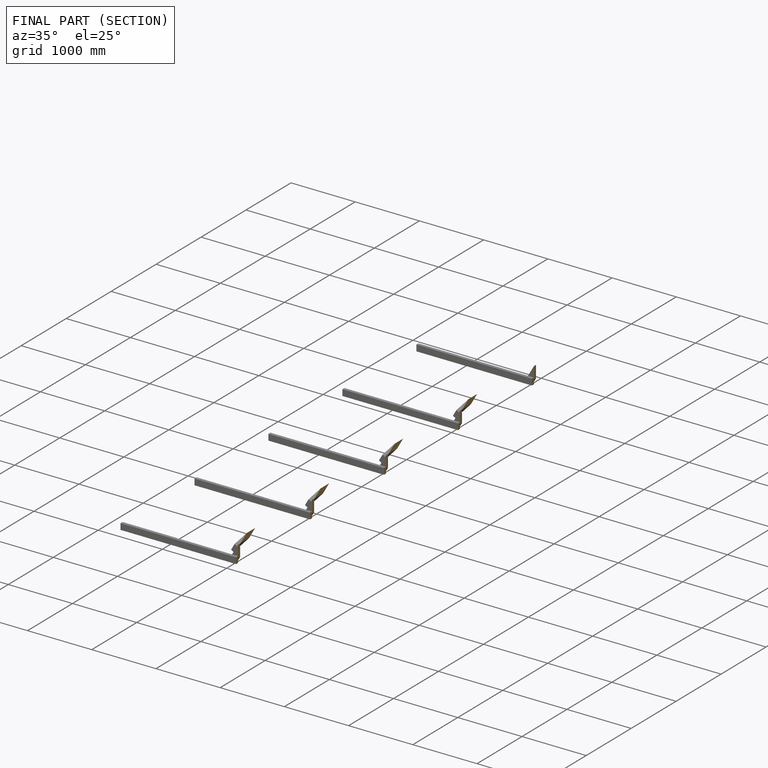
[diagram: finished part — half-section view (interior)]
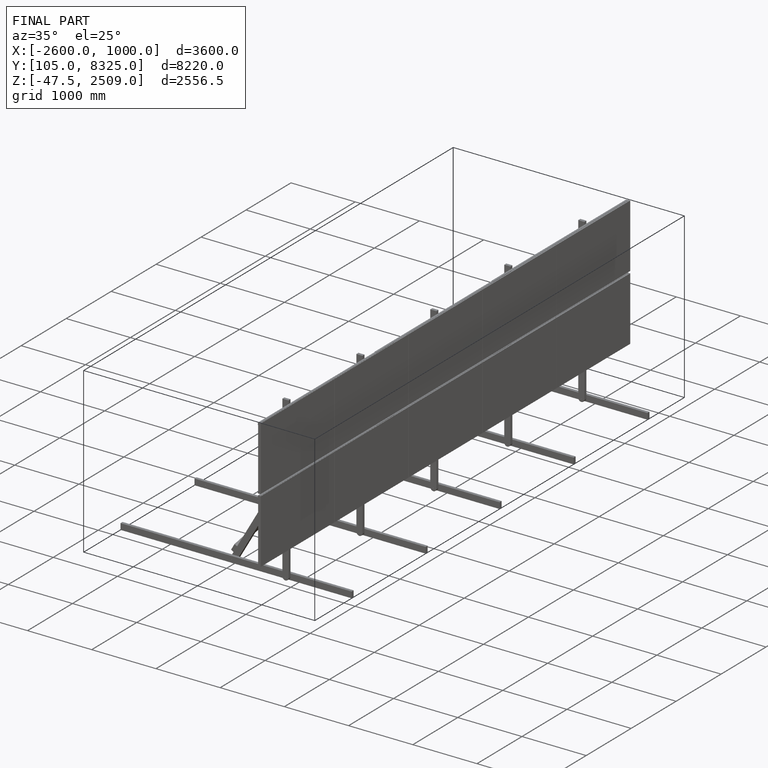
[diagram: finished part — iso view with bounding-box wireframe]
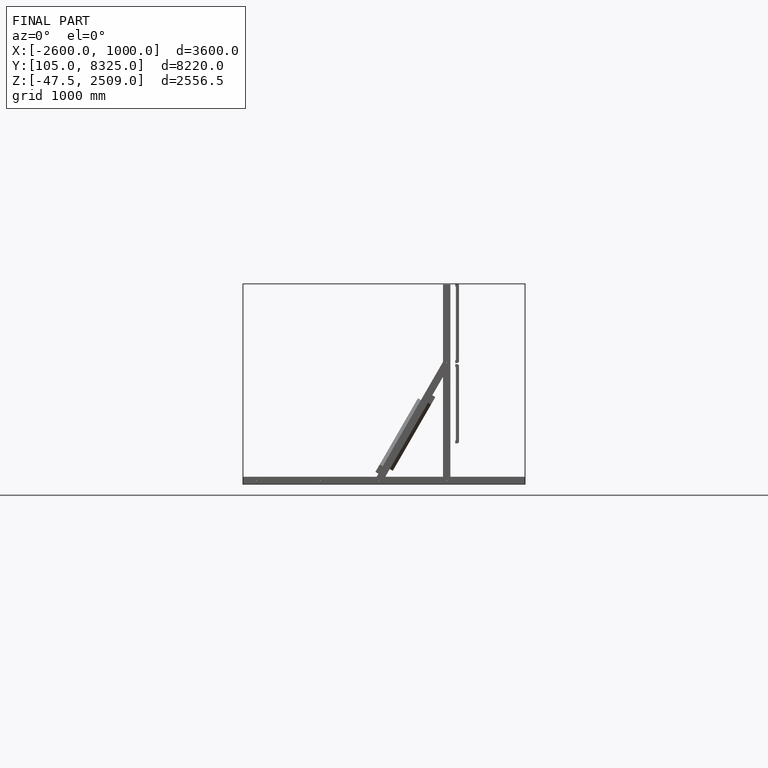
[diagram: finished part — front view with bounding-box wireframe]
